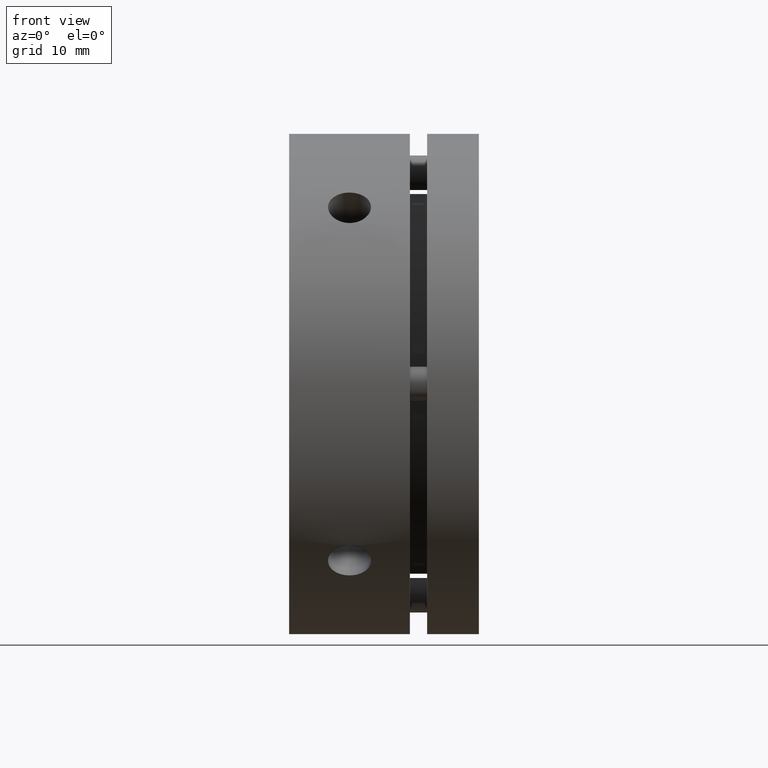
[diagram: clean part render]
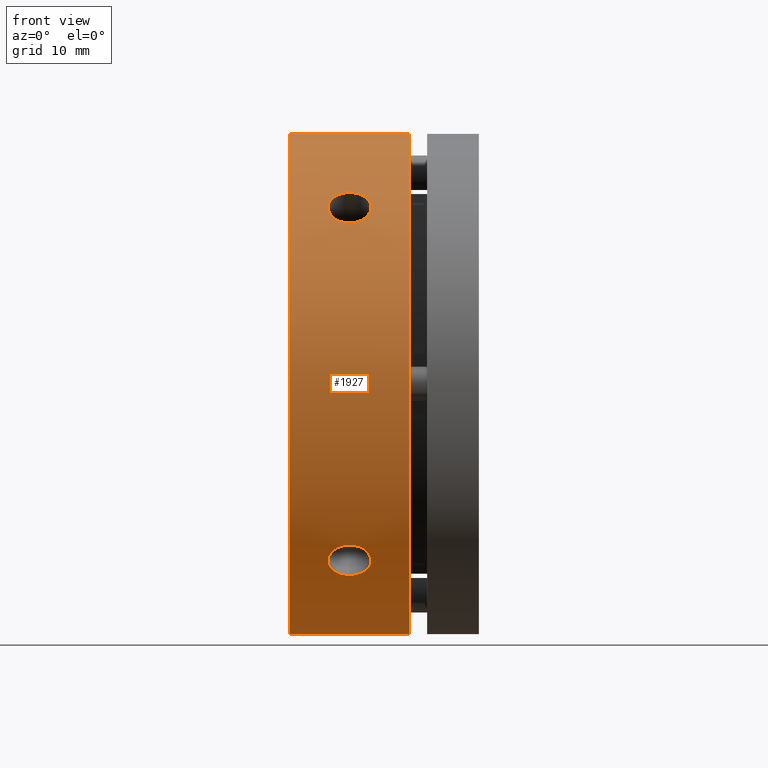
[diagram: same view with one face highlighted and labeled with its STEP entity id]
A machine part, front view. The second image highlights one B-rep face of the part: STEP entity #1927.
In plain terms, the highlighted cylindrical surface (partial cylindrical patch) has radius 29 mm, axis along (1, 0, 0).
Its self-contained STEP definition (entity closure, byte-faithful):
#207 = EDGE_LOOP ( 'NONE', ( #3441, #3440 ) ) ;
#208 = EDGE_LOOP ( 'NONE', ( #3439, #3438 ) ) ;
#209 = EDGE_LOOP ( 'NONE', ( #250, #3443, #3444, #3442 ) ) ;
#250 = ORIENTED_EDGE ( 'NONE', *, *, #3452, .F. ) ;
#449 = VERTEX_POINT ( 'NONE', #2058 ) ;
#450 = VERTEX_POINT ( 'NONE', #2059 ) ;
#453 = VERTEX_POINT ( 'NONE', #2062 ) ;
#454 = VERTEX_POINT ( 'NONE', #2063 ) ;
#456 = VERTEX_POINT ( 'NONE', #2065 ) ;
#457 = VERTEX_POINT ( 'NONE', #2066 ) ;
#459 = VERTEX_POINT ( 'NONE', #2068 ) ;
#461 = VERTEX_POINT ( 'NONE', #2070 ) ;
#523 = AXIS2_PLACEMENT_3D ( 'NONE', #2859, #2860, #2858 ) ;
#549 = EDGE_CURVE ( 'NONE', #450, #449, #1052, .T. ) ;
#580 = EDGE_CURVE ( 'NONE', #456, #457, #616, .T. ) ;
#582 = EDGE_CURVE ( 'NONE', #453, #454, #1061, .T. ) ;
#583 = EDGE_CURVE ( 'NONE', #449, #450, #1060, .T. ) ;
#616 = CIRCLE ( 'NONE', #3121, 29.00000000000000400 ) ;
#1050 = B_SPLINE_CURVE_WITH_KNOTS ( 'NONE', 3,
 ( #3266, #3267, #3271, #3272, #3273, #3274, #3275, #3276, #3277, #3278, #3279, #3280, #3281, #3282, #3283, #3284, #3285, #3286, #3287, #3288, #3289, #3290, #3291, #3292, #3293, #3294, #3295, #3296, #3297, #3298, #3299, #3300, #3301, #3302 ),
 .UNSPECIFIED., .F., .F.,
 ( 4, 2, 2, 2, 2, 2, 2, 2, 2, 2, 2, 2, 2, 2, 2, 2, 4 ),
 ( 0.01172885886875083300, 0.01221748855719005700, 0.01270611824562928100, 0.01319474793406850600, 0.01368337762250772900, 0.01417200731094695300, 0.01466063699938617700, 0.01514926668782540200, 0.01563789637626462500, 0.01612652606470384900, 0.01661515575314307500, 0.01710378544158229800, 0.01759241513002152100, 0.01808104481846074500, 0.01856967450689996800, 0.01905830419533919400, 0.01954693388377841700 ),
 .UNSPECIFIED. ) ;
#1052 = B_SPLINE_CURVE_WITH_KNOTS ( 'NONE', 3,
 ( #2102, #2097, #2103, #2104, #2105, #2106, #2107, #2108, #2109, #2110, #2111, #2112, #2113, #2114, #2115, #2116, #2117, #2118, #2119, #2120, #2121, #2122, #2123, #2124, #2125, #2126, #2127, #2128, #2129, #2130, #2131, #2132, #2133, #2134 ),
 .UNSPECIFIED., .F., .F.,
 ( 4, 2, 2, 2, 2, 2, 2, 2, 2, 2, 2, 2, 2, 2, 2, 2, 4 ),
 ( 0.01172885886875082800, 0.01221748855719005100, 0.01270611824562927600, 0.01319474793406849900, 0.01368337762250772200, 0.01417200731094694600, 0.01466063699938617100, 0.01514926668782539400, 0.01563789637626461900, 0.01612652606470384200, 0.01661515575314306500, 0.01710378544158228800, 0.01759241513002151500, 0.01808104481846073400, 0.01856967450689996100, 0.01905830419533918400, 0.01954693388377840700 ),
 .UNSPECIFIED. ) ;
#1060 = B_SPLINE_CURVE_WITH_KNOTS ( 'NONE', 3,
 ( #2219, #2201, #2255, #2256, #2257, #2258, #2259, #2260, #2261, #2262, #2263, #2264, #2265, #2266, #2267, #2268, #2269, #2270, #2271, #2272, #2273, #2274, #2275, #2276, #2277, #2278, #2279, #2280, #2281, #2282, #2283, #2284, #2285, #2286 ),
 .UNSPECIFIED., .F., .F.,
 ( 4, 2, 2, 2, 2, 2, 2, 2, 2, 2, 2, 2, 2, 2, 2, 2, 4 ),
 ( 0.003910783848401366700, 0.004399413537173210000, 0.004888043225945053400, 0.005376672914716894100, 0.005865302603488734900, 0.006353932292260575600, 0.006842561981032416400, 0.007331191669804257100, 0.007819821358576097000, 0.008308451047347939500, 0.008797080736119778500, 0.009285710424891621000, 0.009774340113663460000, 0.01026296980243530200, 0.01075159949120714200, 0.01124022917997898600, 0.01172885886875083000 ),
 .UNSPECIFIED. ) ;
#1061 = B_SPLINE_CURVE_WITH_KNOTS ( 'NONE', 3,
 ( #2205, #2218, #2223, #2224, #2225, #2226, #2227, #2228, #2229, #2230, #2231, #2232, #2233, #2234, #2235, #2236, #2237, #2238, #2239, #2240, #2241, #2242, #2243, #2244, #2245, #2246, #2247, #2248, #2249, #2250, #2251, #2252, #2253, #2254 ),
 .UNSPECIFIED., .F., .F.,
 ( 4, 2, 2, 2, 2, 2, 2, 2, 2, 2, 2, 2, 2, 2, 2, 2, 4 ),
 ( 0.003910783848401368400, 0.004399413537173211700, 0.004888043225945056000, 0.005376672914716896700, 0.005865302603488737500, 0.006353932292260579100, 0.006842561981032420700, 0.007331191669804261500, 0.007819821358576102200, 0.008308451047347943000, 0.008797080736119783700, 0.009285710424891624500, 0.009774340113663466900, 0.01026296980243530600, 0.01075159949120714800, 0.01124022917997899100, 0.01172885886875083300 ),
 .UNSPECIFIED. ) ;
#1477 = FACE_OUTER_BOUND ( 'NONE', #209, .T. ) ;
#1478 = FACE_BOUND ( 'NONE', #208, .T. ) ;
#1481 = FACE_BOUND ( 'NONE', #207, .T. ) ;
#1484 = CYLINDRICAL_SURFACE ( 'NONE', #523, 29.00000000000000400 ) ;
#1586 = LINE ( 'NONE', #3018, #1590 ) ;
#1590 = VECTOR ( 'NONE', #3012, 1000.000000000000000 ) ;
#1592 = LINE ( 'NONE', #3027, #1594 ) ;
#1594 = VECTOR ( 'NONE', #3029, 1000.000000000000000 ) ;
#1647 = CIRCLE ( 'NONE', #3495, 29.00000000000000400 ) ;
#1927 = ADVANCED_FACE ( 'NONE', ( #1477, #1481, #1478 ), #1484, .T. ) ;
#2058 = CARTESIAN_POINT ( 'NONE',  ( 6.999999999999992900, -22.19752466078072900, -18.66199075484798800 ) ) ;
#2059 = CARTESIAN_POINT ( 'NONE',  ( 6.999999999999992900, -18.66199075484799200, -22.19752466078072600 ) ) ;
#2062 = CARTESIAN_POINT ( 'NONE',  ( 6.999999999999992900, -18.66199075484799200, 22.19752466078072900 ) ) ;
#2063 = CARTESIAN_POINT ( 'NONE',  ( 6.999999999999992900, -22.19752466078072900, 18.66199075484798800 ) ) ;
#2065 = CARTESIAN_POINT ( 'NONE',  ( 14.00000000000000000, 0.0000000000000000000, -29.00000000000000400 ) ) ;
#2066 = CARTESIAN_POINT ( 'NONE',  ( 14.00000000000000000, 3.551475717527324800E-015, 29.00000000000000400 ) ) ;
#2068 = CARTESIAN_POINT ( 'NONE',  ( -8.673617379884035500E-015, 3.551475717527324800E-015, 29.00000000000000400 ) ) ;
#2070 = CARTESIAN_POINT ( 'NONE',  ( -8.673617379884035500E-015, 0.0000000000000000000, -29.00000000000000400 ) ) ;
#2097 = CARTESIAN_POINT ( 'NONE',  ( 6.836889293315132400, -18.66199075484798800, -22.19752466078072900 ) ) ;
#2102 = CARTESIAN_POINT ( 'NONE',  ( 6.999999999999992900, -18.66199075484799200, -22.19752466078072600 ) ) ;
#2103 = CARTESIAN_POINT ( 'NONE',  ( 6.671209411699219800, -18.67454627982971600, -22.18698607935332800 ) ) ;
#2104 = CARTESIAN_POINT ( 'NONE',  ( 6.350602221593688600, -18.72360912221539000, -22.14559756433346700 ) ) ;
#2105 = CARTESIAN_POINT ( 'NONE',  ( 6.194766286574619600, -18.75984821444914300, -22.11497340511872200 ) ) ;
#2106 = CARTESIAN_POINT ( 'NONE',  ( 5.892077017659619100, -18.85557220818597600, -22.03341440721713700 ) ) ;
#2107 = CARTESIAN_POINT ( 'NONE',  ( 5.745830729501782300, -18.91521975453383000, -21.98232687178327500 ) ) ;
#2108 = CARTESIAN_POINT ( 'NONE',  ( 5.475107132603085300, -19.05240620973999900, -21.86353243827018400 ) ) ;
#2109 = CARTESIAN_POINT ( 'NONE',  ( 5.348899357913802000, -19.13042679679525900, -21.79542242833628800 ) ) ;
#2110 = CARTESIAN_POINT ( 'NONE',  ( 5.115517966158138900, -19.30553533760306100, -21.64047073392179900 ) ) ;
#2111 = CARTESIAN_POINT ( 'NONE',  ( 5.012136730428754700, -19.39978651902036000, -21.55612772977841400 ) ) ;
#2112 = CARTESIAN_POINT ( 'NONE',  ( 4.831177672506670200, -19.60037031873259000, -21.37390565747477900 ) ) ;
#2113 = CARTESIAN_POINT ( 'NONE',  ( 4.752923106869283200, -19.70798420472281300, -21.27482800575629400 ) ) ;
#2114 = CARTESIAN_POINT ( 'NONE',  ( 4.627524710443262600, -19.92916775664428300, -21.06777683135184600 ) ) ;
#2115 = CARTESIAN_POINT ( 'NONE',  ( 4.580265046816363900, -20.04215347677030200, -20.96038554305367900 ) ) ;
#2116 = CARTESIAN_POINT ( 'NONE',  ( 4.516342887760561800, -20.27256210156901500, -20.73762049845395300 ) ) ;
#2117 = CARTESIAN_POINT ( 'NONE',  ( 4.499883565422372600, -20.39053697614956600, -20.62167052778379200 ) ) ;
#2118 = CARTESIAN_POINT ( 'NONE',  ( 4.500117689778695000, -20.62416145168139200, -20.38801750899700600 ) ) ;
#2119 = CARTESIAN_POINT ( 'NONE',  ( 4.516447802042618400, -20.73801408011930300, -20.27215593875855900 ) ) ;
#2120 = CARTESIAN_POINT ( 'NONE',  ( 4.580206628080246900, -20.96015397528889000, -20.04239206593742400 ) ) ;
#2121 = CARTESIAN_POINT ( 'NONE',  ( 4.628416924226099700, -21.06957362854537800, -19.92726727274733600 ) ) ;
#2122 = CARTESIAN_POINT ( 'NONE',  ( 4.754105446092659700, -21.27645120723633800, -19.70623094034710500 ) ) ;
#2123 = CARTESIAN_POINT ( 'NONE',  ( 4.830982297680539400, -21.37372611167655400, -19.60056917450993600 ) ) ;
#2124 = CARTESIAN_POINT ( 'NONE',  ( 5.012565598953407300, -21.55654237683489800, -19.39932887028400200 ) ) ;
#2125 = CARTESIAN_POINT ( 'NONE',  ( 5.118178343002607100, -21.64235231917999900, -19.30341673895289000 ) ) ;
#2126 = CARTESIAN_POINT ( 'NONE',  ( 5.348833087511979800, -21.79526187514384400, -19.13060039567769600 ) ) ;
#2127 = CARTESIAN_POINT ( 'NONE',  ( 5.474693285963686800, -21.86340826021076100, -19.05255251492174700 ) ) ;
#2128 = CARTESIAN_POINT ( 'NONE',  ( 5.748046894809354200, -21.98324153349766500, -18.91416056203409800 ) ) ;
#2129 = CARTESIAN_POINT ( 'NONE',  ( 5.893454299515430400, -22.03380790690972200, -18.85511098082234900 ) ) ;
#2130 = CARTESIAN_POINT ( 'NONE',  ( 6.194281383739776100, -22.11482028857760400, -18.76002730759317000 ) ) ;
#2131 = CARTESIAN_POINT ( 'NONE',  ( 6.351927524470923500, -22.14587360183627100, -18.72328271223128500 ) ) ;
#2132 = CARTESIAN_POINT ( 'NONE',  ( 6.674643550635284600, -22.18732289852592700, -18.67414618415509900 ) ) ;
#2133 = CARTESIAN_POINT ( 'NONE',  ( 6.836889045201713700, -22.19752466078072900, -18.66199075484798400 ) ) ;
#2134 = CARTESIAN_POINT ( 'NONE',  ( 6.999999999999992900, -22.19752466078072900, -18.66199075484798800 ) ) ;
#2201 = CARTESIAN_POINT ( 'NONE',  ( 7.163110954909305900, -22.19752466078072600, -18.66199075484798800 ) ) ;
#2205 = CARTESIAN_POINT ( 'NONE',  ( 6.999999999999992900, -18.66199075484799200, 22.19752466078072900 ) ) ;
#2215 = CARTESIAN_POINT ( 'NONE',  ( 14.00000000000000000, 0.0000000000000000000, 0.0000000000000000000 ) ) ;
#2216 = DIRECTION ( 'NONE',  ( -1.000000000000000000, -0.0000000000000000000, -0.0000000000000000000 ) ) ;
#2217 = DIRECTION ( 'NONE',  ( 0.0000000000000000000, 0.0000000000000000000, -1.000000000000000000 ) ) ;
#2218 = CARTESIAN_POINT ( 'NONE',  ( 7.163110954909307700, -18.66199075484798800, 22.19752466078072600 ) ) ;
#2219 = CARTESIAN_POINT ( 'NONE',  ( 6.999999999999992900, -22.19752466078072900, -18.66199075484798800 ) ) ;
#2223 = CARTESIAN_POINT ( 'NONE',  ( 7.328791089934386900, -18.67454631854178600, 22.18698604690868600 ) ) ;
#2224 = CARTESIAN_POINT ( 'NONE',  ( 7.649398740487888500, -18.72360930749730900, 22.14559740782088300 ) ) ;
#2225 = CARTESIAN_POINT ( 'NONE',  ( 7.805234892621213800, -18.75984850724460200, 22.11497315728584600 ) ) ;
#2226 = CARTESIAN_POINT ( 'NONE',  ( 8.107924566968145900, -18.85557278943688400, 22.03341391034281200 ) ) ;
#2227 = CARTESIAN_POINT ( 'NONE',  ( 8.254171002879299800, -18.91522050272665800, 21.98232622904114900 ) ) ;
#2228 = CARTESIAN_POINT ( 'NONE',  ( 8.524894842937689200, -19.05240734050100600, 21.86353145396199000 ) ) ;
#2229 = CARTESIAN_POINT ( 'NONE',  ( 8.651102712503494300, -19.13042814526029300, 21.79542124658690800 ) ) ;
#2230 = CARTESIAN_POINT ( 'NONE',  ( 8.884484225384289500, -19.30553718693550600, 21.64046908597384800 ) ) ;
#2231 = CARTESIAN_POINT ( 'NONE',  ( 8.987865394785849600, -19.39978856227069000, 21.55612589309480100 ) ) ;
#2232 = CARTESIAN_POINT ( 'NONE',  ( 9.168824333069515800, -19.60037285425834600, 21.37390333452955800 ) ) ;
#2233 = CARTESIAN_POINT ( 'NONE',  ( 9.247078799891681900, -19.70798702155401500, 21.27482539859592900 ) ) ;
#2234 = CARTESIAN_POINT ( 'NONE',  ( 9.372476817786653300, -19.92917099862555100, 21.06777376682277100 ) ) ;
#2235 = CARTESIAN_POINT ( 'NONE',  ( 9.419736255052413300, -20.04215693526427000, 20.96038223865167200 ) ) ;
#2236 = CARTESIAN_POINT ( 'NONE',  ( 9.483657853192907400, -20.27256600650579400, 20.73761668369855100 ) ) ;
#2237 = CARTESIAN_POINT ( 'NONE',  ( 9.500116828457473500, -20.39054148882279800, 20.62166606313038400 ) ) ;
#2238 = CARTESIAN_POINT ( 'NONE',  ( 9.499881907783500200, -20.62416546416109500, 20.38801344745415300 ) ) ;
#2239 = CARTESIAN_POINT ( 'NONE',  ( 9.483551465865751600, -20.73801785504052500, 20.27215207472593800 ) ) ;
#2240 = CARTESIAN_POINT ( 'NONE',  ( 9.419792068213674000, -20.96015729318004600, 20.04238859372669500 ) ) ;
#2241 = CARTESIAN_POINT ( 'NONE',  ( 9.371581518802319300, -21.06957673019084300, 19.92726399046936300 ) ) ;
#2242 = CARTESIAN_POINT ( 'NONE',  ( 9.245892671011116400, -21.27645376744169400, 19.70622817327488400 ) ) ;
#2243 = CARTESIAN_POINT ( 'NONE',  ( 9.169015707227634600, -21.37372842538444200, 19.60056664924231000 ) ) ;
#2244 = CARTESIAN_POINT ( 'NONE',  ( 8.987432254802953900, -21.55654423257546200, 19.39932680590988700 ) ) ;
#2245 = CARTESIAN_POINT ( 'NONE',  ( 8.881819506822877100, -21.64235393242091700, 19.30341492832802400 ) ) ;
#2246 = CARTESIAN_POINT ( 'NONE',  ( 8.651164854266374600, -21.79526305180085500, 19.13059905319685300 ) ) ;
#2247 = CARTESIAN_POINT ( 'NONE',  ( 8.525304735573520500, -21.86340924704133900, 19.05255138129912900 ) ) ;
#2248 = CARTESIAN_POINT ( 'NONE',  ( 8.251951343062524200, -21.98324218647277600, 18.91415980189286500 ) ) ;
#2249 = CARTESIAN_POINT ( 'NONE',  ( 8.106544136692129100, -22.03380839699892500, 18.85511040750019900 ) ) ;
#2250 = CARTESIAN_POINT ( 'NONE',  ( 7.805717435693329900, -22.11482053754051700, 18.76002701349492300 ) ) ;
#2251 = CARTESIAN_POINT ( 'NONE',  ( 7.648071496905440200, -22.14587376021935900, 18.72328252472630400 ) ) ;
#2252 = CARTESIAN_POINT ( 'NONE',  ( 7.325355955965577000, -22.18732292920768900, 18.67414614753104700 ) ) ;
#2253 = CARTESIAN_POINT ( 'NONE',  ( 7.163110706795890800, -22.19752466078073300, 18.66199075484798800 ) ) ;
#2254 = CARTESIAN_POINT ( 'NONE',  ( 6.999999999999992900, -22.19752466078072900, 18.66199075484798800 ) ) ;
#2255 = CARTESIAN_POINT ( 'NONE',  ( 7.328791089934384200, -22.18698604690868200, -18.67454631854178600 ) ) ;
#2256 = CARTESIAN_POINT ( 'NONE',  ( 7.649398740487885800, -22.14559740782088700, -18.72360930749731600 ) ) ;
#2257 = CARTESIAN_POINT ( 'NONE',  ( 7.805234892621212900, -22.11497315728585600, -18.75984850724460200 ) ) ;
#2258 = CARTESIAN_POINT ( 'NONE',  ( 8.107924566968147700, -22.03341391034281600, -18.85557278943689500 ) ) ;
#2259 = CARTESIAN_POINT ( 'NONE',  ( 8.254171002879296300, -21.98232622904115600, -18.91522050272664800 ) ) ;
#2260 = CARTESIAN_POINT ( 'NONE',  ( 8.524894842937689200, -21.86353145396199300, -19.05240734050100200 ) ) ;
#2261 = CARTESIAN_POINT ( 'NONE',  ( 8.651102712503499600, -21.79542124658690500, -19.13042814526029600 ) ) ;
#2262 = CARTESIAN_POINT ( 'NONE',  ( 8.884484225384285900, -21.64046908597384400, -19.30553718693550300 ) ) ;
#2263 = CARTESIAN_POINT ( 'NONE',  ( 8.987865394785846000, -21.55612589309479800, -19.39978856227067900 ) ) ;
#2264 = CARTESIAN_POINT ( 'NONE',  ( 9.168824333069512300, -21.37390333452956500, -19.60037285425834200 ) ) ;
#2265 = CARTESIAN_POINT ( 'NONE',  ( 9.247078799891680100, -21.27482539859592900, -19.70798702155401500 ) ) ;
#2266 = CARTESIAN_POINT ( 'NONE',  ( 9.372476817786653300, -21.06777376682277100, -19.92917099862554800 ) ) ;
#2267 = CARTESIAN_POINT ( 'NONE',  ( 9.419736255052413300, -20.96038223865167900, -20.04215693526426600 ) ) ;
#2268 = CARTESIAN_POINT ( 'NONE',  ( 9.483657853192907400, -20.73761668369855500, -20.27256600650579800 ) ) ;
#2269 = CARTESIAN_POINT ( 'NONE',  ( 9.500116828457473500, -20.62166606313039100, -20.39054148882278700 ) ) ;
#2270 = CARTESIAN_POINT ( 'NONE',  ( 9.499881907783500200, -20.38801344745414600, -20.62416546416109500 ) ) ;
#2271 = CARTESIAN_POINT ( 'NONE',  ( 9.483551465865751600, -20.27215207472594100, -20.73801785504052100 ) ) ;
#2272 = CARTESIAN_POINT ( 'NONE',  ( 9.419792068213674000, -20.04238859372669500, -20.96015729318005000 ) ) ;
#2273 = CARTESIAN_POINT ( 'NONE',  ( 9.371581518802319300, -19.92726399046936700, -21.06957673019084300 ) ) ;
#2274 = CARTESIAN_POINT ( 'NONE',  ( 9.245892671011116400, -19.70622817327488400, -21.27645376744169100 ) ) ;
#2275 = CARTESIAN_POINT ( 'NONE',  ( 9.169015707227634600, -19.60056664924231000, -21.37372842538444200 ) ) ;
#2276 = CARTESIAN_POINT ( 'NONE',  ( 8.987432254802953900, -19.39932680590988700, -21.55654423257546200 ) ) ;
#2277 = CARTESIAN_POINT ( 'NONE',  ( 8.881819506822877100, -19.30341492832802400, -21.64235393242091700 ) ) ;
#2278 = CARTESIAN_POINT ( 'NONE',  ( 8.651164854266372800, -19.13059905319685700, -21.79526305180085500 ) ) ;
#2279 = CARTESIAN_POINT ( 'NONE',  ( 8.525304735573520500, -19.05255138129913900, -21.86340924704133900 ) ) ;
#2280 = CARTESIAN_POINT ( 'NONE',  ( 8.251951343062526000, -18.91415980189286500, -21.98324218647277600 ) ) ;
#2281 = CARTESIAN_POINT ( 'NONE',  ( 8.106544136692132700, -18.85511040750019900, -22.03380839699892500 ) ) ;
#2282 = CARTESIAN_POINT ( 'NONE',  ( 7.805717435693332500, -18.76002701349493400, -22.11482053754051700 ) ) ;
#2283 = CARTESIAN_POINT ( 'NONE',  ( 7.648071496905439300, -18.72328252472630400, -22.14587376021935600 ) ) ;
#2284 = CARTESIAN_POINT ( 'NONE',  ( 7.325355955965576100, -18.67414614753104700, -22.18732292920768900 ) ) ;
#2285 = CARTESIAN_POINT ( 'NONE',  ( 7.163110706795887200, -18.66199075484798400, -22.19752466078072600 ) ) ;
#2286 = CARTESIAN_POINT ( 'NONE',  ( 6.999999999999992900, -18.66199075484799200, -22.19752466078072600 ) ) ;
#2858 = DIRECTION ( 'NONE',  ( 0.0000000000000000000, 0.0000000000000000000, -1.000000000000000000 ) ) ;
#2859 = CARTESIAN_POINT ( 'NONE',  ( 10.99999999999999300, 0.0000000000000000000, 0.0000000000000000000 ) ) ;
#2860 = DIRECTION ( 'NONE',  ( 1.000000000000000000, 0.0000000000000000000, 0.0000000000000000000 ) ) ;
#3012 = DIRECTION ( 'NONE',  ( 1.000000000000000000, 0.0000000000000000000, 0.0000000000000000000 ) ) ;
#3018 = CARTESIAN_POINT ( 'NONE',  ( 10.99999999999999300, 3.551475717527324800E-015, 29.00000000000000400 ) ) ;
#3027 = CARTESIAN_POINT ( 'NONE',  ( 10.99999999999999300, 0.0000000000000000000, -29.00000000000000400 ) ) ;
#3029 = DIRECTION ( 'NONE',  ( 1.000000000000000000, 0.0000000000000000000, 0.0000000000000000000 ) ) ;
#3121 = AXIS2_PLACEMENT_3D ( 'NONE', #2215, #2216, #2217 ) ;
#3266 = CARTESIAN_POINT ( 'NONE',  ( 6.999999999999992900, -22.19752466078072900, 18.66199075484798800 ) ) ;
#3267 = CARTESIAN_POINT ( 'NONE',  ( 6.836889293315132400, -22.19752466078072600, 18.66199075484798400 ) ) ;
#3271 = CARTESIAN_POINT ( 'NONE',  ( 6.671209411699220700, -22.18698607935332800, 18.67454627982971600 ) ) ;
#3272 = CARTESIAN_POINT ( 'NONE',  ( 6.350602221593689500, -22.14559756433346700, 18.72360912221539300 ) ) ;
#3273 = CARTESIAN_POINT ( 'NONE',  ( 6.194766286574622200, -22.11497340511872200, 18.75984821444914300 ) ) ;
#3274 = CARTESIAN_POINT ( 'NONE',  ( 5.892077017659621800, -22.03341440721714100, 18.85557220818596800 ) ) ;
#3275 = CARTESIAN_POINT ( 'NONE',  ( 5.745830729501784100, -21.98232687178327500, 18.91521975453382300 ) ) ;
#3276 = CARTESIAN_POINT ( 'NONE',  ( 5.475107132603087100, -21.86353243827018700, 19.05240620973999900 ) ) ;
#3277 = CARTESIAN_POINT ( 'NONE',  ( 5.348899357913803800, -21.79542242833629100, 19.13042679679525900 ) ) ;
#3278 = CARTESIAN_POINT ( 'NONE',  ( 5.115517966158140700, -21.64047073392180600, 19.30553533760305400 ) ) ;
#3279 = CARTESIAN_POINT ( 'NONE',  ( 5.012136730428756500, -21.55612772977841700, 19.39978651902034600 ) ) ;
#3280 = CARTESIAN_POINT ( 'NONE',  ( 4.831177672506672000, -21.37390565747477900, 19.60037031873258700 ) ) ;
#3281 = CARTESIAN_POINT ( 'NONE',  ( 4.752923106869285000, -21.27482800575629400, 19.70798420472280900 ) ) ;
#3282 = CARTESIAN_POINT ( 'NONE',  ( 4.627524710443265300, -21.06777683135185700, 19.92916775664427900 ) ) ;
#3283 = CARTESIAN_POINT ( 'NONE',  ( 4.580265046816364800, -20.96038554305368600, 20.04215347677030200 ) ) ;
#3284 = CARTESIAN_POINT ( 'NONE',  ( 4.516342887760563600, -20.73762049845395700, 20.27256210156900800 ) ) ;
#3285 = CARTESIAN_POINT ( 'NONE',  ( 4.499883565422372600, -20.62167052778379500, 20.39053697614956200 ) ) ;
#3286 = CARTESIAN_POINT ( 'NONE',  ( 4.500117689778694100, -20.38801750899700900, 20.62416145168139200 ) ) ;
#3287 = CARTESIAN_POINT ( 'NONE',  ( 4.516447802042617500, -20.27215593875856600, 20.73801408011929900 ) ) ;
#3288 = CARTESIAN_POINT ( 'NONE',  ( 4.580206628080246900, -20.04239206593743500, 20.96015397528888300 ) ) ;
#3289 = CARTESIAN_POINT ( 'NONE',  ( 4.628416924226099700, -19.92726727274734000, 21.06957362854537400 ) ) ;
#3290 = CARTESIAN_POINT ( 'NONE',  ( 4.754105446092657900, -19.70623094034710800, 21.27645120723633100 ) ) ;
#3291 = CARTESIAN_POINT ( 'NONE',  ( 4.830982297680537700, -19.60056917450994300, 21.37372611167655000 ) ) ;
#3292 = CARTESIAN_POINT ( 'NONE',  ( 5.012565598953405500, -19.39932887028400900, 21.55654237683489400 ) ) ;
#3293 = CARTESIAN_POINT ( 'NONE',  ( 5.118178343002601800, -19.30341673895289700, 21.64235231917999500 ) ) ;
#3294 = CARTESIAN_POINT ( 'NONE',  ( 5.348833087511976300, -19.13060039567769600, 21.79526187514384400 ) ) ;
#3295 = CARTESIAN_POINT ( 'NONE',  ( 5.474693285963685000, -19.05255251492175400, 21.86340826021076100 ) ) ;
#3296 = CARTESIAN_POINT ( 'NONE',  ( 5.748046894809354200, -18.91416056203410500, 21.98324153349767200 ) ) ;
#3297 = CARTESIAN_POINT ( 'NONE',  ( 5.893454299515427800, -18.85511098082234900, 22.03380790690971800 ) ) ;
#3298 = CARTESIAN_POINT ( 'NONE',  ( 6.194281383739775200, -18.76002730759317000, 22.11482028857760400 ) ) ;
#3299 = CARTESIAN_POINT ( 'NONE',  ( 6.351927524470917200, -18.72328271223128500, 22.14587360183626800 ) ) ;
#3300 = CARTESIAN_POINT ( 'NONE',  ( 6.674643550635278400, -18.67414618415509900, 22.18732289852592700 ) ) ;
#3301 = CARTESIAN_POINT ( 'NONE',  ( 6.836889045201711900, -18.66199075484798400, 22.19752466078072900 ) ) ;
#3302 = CARTESIAN_POINT ( 'NONE',  ( 6.999999999999992900, -18.66199075484799200, 22.19752466078072900 ) ) ;
#3306 = CARTESIAN_POINT ( 'NONE',  ( -8.673617379884035500E-015, 0.0000000000000000000, 0.0000000000000000000 ) ) ;
#3307 = DIRECTION ( 'NONE',  ( 1.000000000000000000, 0.0000000000000000000, 0.0000000000000000000 ) ) ;
#3308 = DIRECTION ( 'NONE',  ( 0.0000000000000000000, 0.0000000000000000000, -1.000000000000000000 ) ) ;
#3438 = ORIENTED_EDGE ( 'NONE', *, *, #583, .T. ) ;
#3439 = ORIENTED_EDGE ( 'NONE', *, *, #549, .T. ) ;
#3440 = ORIENTED_EDGE ( 'NONE', *, *, #582, .T. ) ;
#3441 = ORIENTED_EDGE ( 'NONE', *, *, #3555, .T. ) ;
#3442 = ORIENTED_EDGE ( 'NONE', *, *, #580, .T. ) ;
#3443 = ORIENTED_EDGE ( 'NONE', *, *, #3557, .T. ) ;
#3444 = ORIENTED_EDGE ( 'NONE', *, *, #3455, .T. ) ;
#3452 = EDGE_CURVE ( 'NONE', #459, #457, #1586, .T. ) ;
#3455 = EDGE_CURVE ( 'NONE', #461, #456, #1592, .T. ) ;
#3495 = AXIS2_PLACEMENT_3D ( 'NONE', #3306, #3307, #3308 ) ;
#3555 = EDGE_CURVE ( 'NONE', #454, #453, #1050, .T. ) ;
#3557 = EDGE_CURVE ( 'NONE', #459, #461, #1647, .T. ) ;